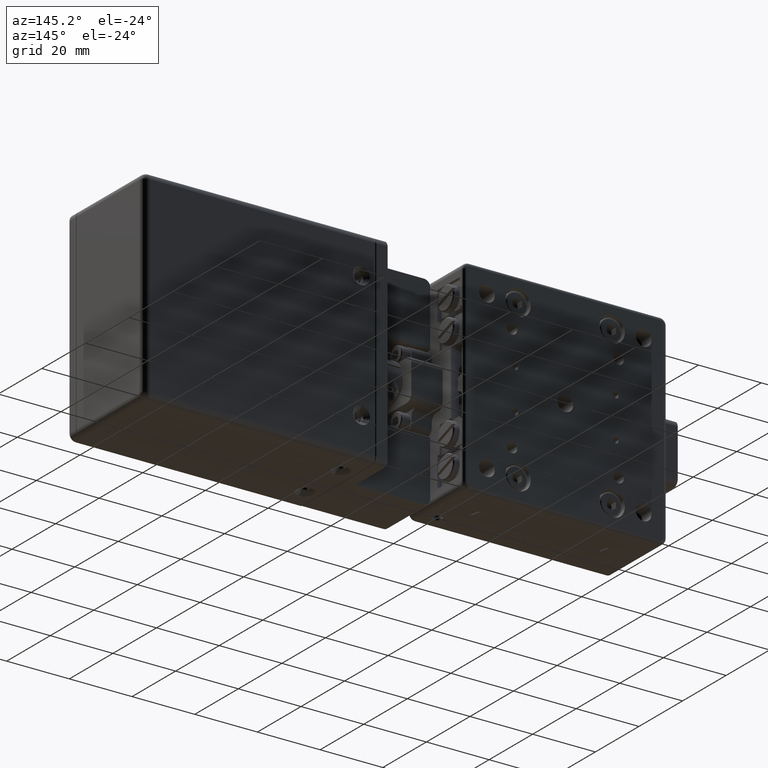
[diagram: clean part render]
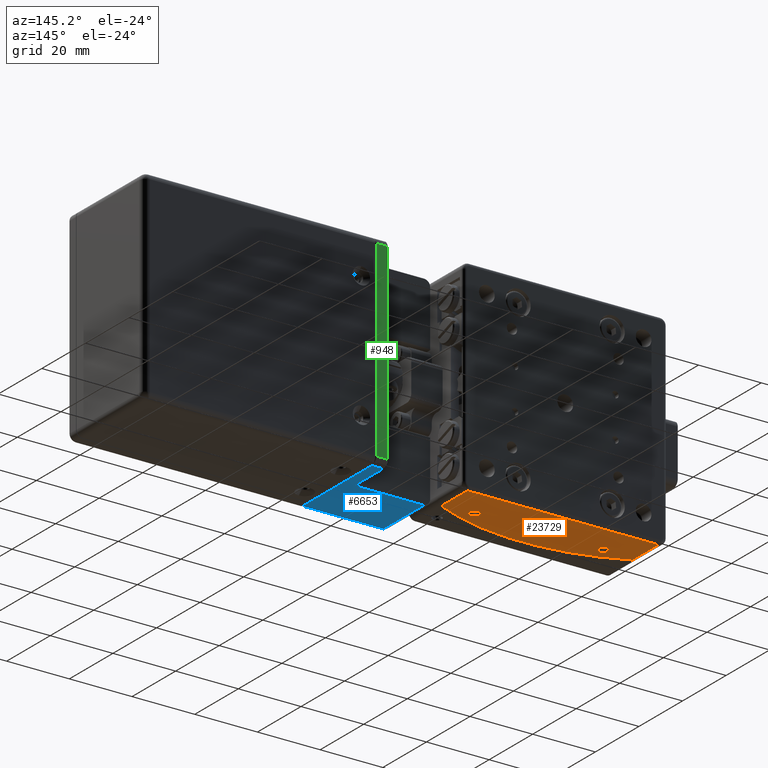
[diagram: same view with three faces highlighted in distinct colors, each labeled with its STEP entity id]
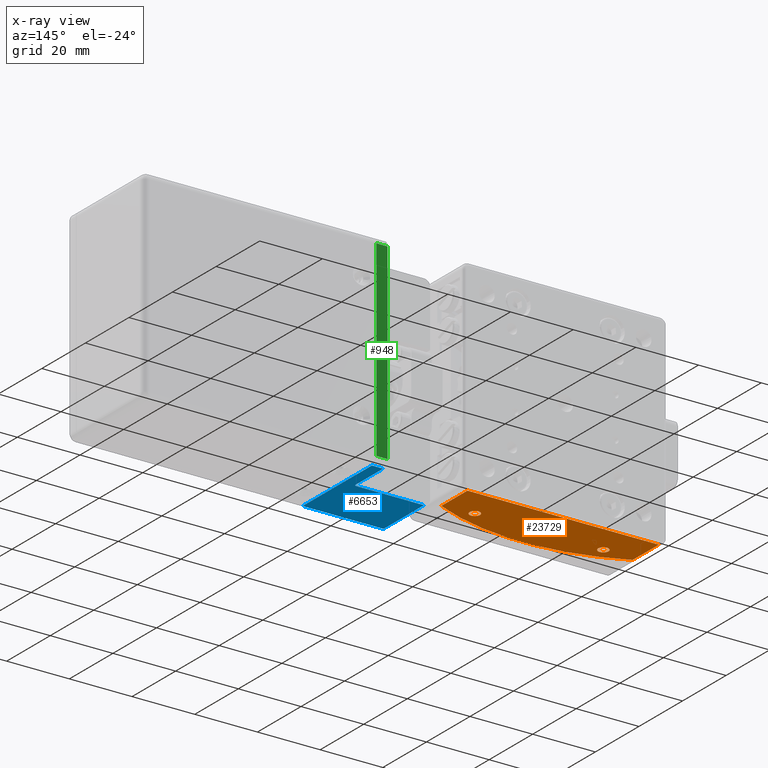
[diagram: x-ray of the same camera — body ghosted, the three highlighted faces saturated]
A machine part, auxiliary view with three faces highlighted in distinct colors.
The next image is the same camera in x-ray (body ghosted, the three faces saturated) — at least one of them is partly hidden behind the body in this view.
Their STEP definitions:

[orange] entity #23729 — the highlighted planar face has unit normal (0, 0, -1).
#836 = DIRECTION ( 'NONE',  ( 0.000000000000000000, 1.000000000000000000, 0.000000000000000000 ) ) ;
#1950 = AXIS2_PLACEMENT_3D ( 'NONE', #45397, #3107, #8836 ) ;
#2269 = VERTEX_POINT ( 'NONE', #23929 ) ;
#2373 = ORIENTED_EDGE ( 'NONE', *, *, #16389, .F. ) ;
#3107 = DIRECTION ( 'NONE',  ( 0.000000000000000000, 0.000000000000000000, -1.000000000000000000 ) ) ;
#4648 = CARTESIAN_POINT ( 'NONE',  ( -130.1520614493393850, 22.74167847702479861, -32.50000000000000000 ) ) ;
#4668 = ORIENTED_EDGE ( 'NONE', *, *, #4992, .T. ) ;
#4992 = EDGE_CURVE ( 'NONE', #32308, #2269, #14597, .T. ) ;
#7381 = CARTESIAN_POINT ( 'NONE',  ( -120.1520614493393850, 33.74167847702480572, -32.50000000000000000 ) ) ;
#7382 = DIRECTION ( 'NONE',  ( 1.000000000000000000, 0.000000000000000000, 0.000000000000000000 ) ) ;
#7650 = CARTESIAN_POINT ( 'NONE',  ( -171.1520614493394987, 22.74167847702479861, -32.50000000000000000 ) ) ;
#7795 = VECTOR ( 'NONE', #7382, 1000.000000000000000 ) ;
#8321 = CARTESIAN_POINT ( 'NONE',  ( -150.6520614493395271, 84.74167847702480572, -32.50000000000000000 ) ) ;
#8802 = EDGE_CURVE ( 'NONE', #33474, #23680, #15130, .T. ) ;
#8836 = DIRECTION ( 'NONE',  ( 0.000000000000000000, -1.000000000000000000, 0.000000000000000000 ) ) ;
#8872 = ORIENTED_EDGE ( 'NONE', *, *, #50369, .T. ) ;
#9171 = CARTESIAN_POINT ( 'NONE',  ( -181.1520614493395271, 34.74167847702480572, -32.50000000000000000 ) ) ;
#9719 = LINE ( 'NONE', #9171, #35764 ) ;
#10690 = DIRECTION ( 'NONE',  ( 0.000000000000000000, -1.000000000000000000, 0.000000000000000000 ) ) ;
#11561 = ORIENTED_EDGE ( 'NONE', *, *, #22363, .T. ) ;
#12634 = DIRECTION ( 'NONE',  ( -1.000000000000000000, 0.000000000000000000, 0.000000000000000000 ) ) ;
#12728 = VERTEX_POINT ( 'NONE', #13175 ) ;
#12767 = DIRECTION ( 'NONE',  ( 0.000000000000000000, 0.000000000000000000, 1.000000000000000000 ) ) ;
#13175 = CARTESIAN_POINT ( 'NONE',  ( -131.8020614493393907, 22.74167847702479861, -32.50000000000000000 ) ) ;
#14221 = EDGE_LOOP ( 'NONE', ( #51653, #17041 ) ) ;
#14317 = VERTEX_POINT ( 'NONE', #22839 ) ;
#14597 = LINE ( 'NONE', #48813, #49739 ) ;
#15130 = CIRCLE ( 'NONE', #46245, 1.650000000000012568 ) ;
#16389 = EDGE_CURVE ( 'NONE', #12728, #30131, #30710, .T. ) ;
#17041 = ORIENTED_EDGE ( 'NONE', *, *, #33896, .F. ) ;
#17242 = CIRCLE ( 'NONE', #46575, 1.650000000000012568 ) ;
#19080 = CARTESIAN_POINT ( 'NONE',  ( -120.1520614493393850, 33.74167847702480572, -32.50000000000000000 ) ) ;
#20078 = FACE_BOUND ( 'NONE', #20779, .T. ) ;
#20702 = DIRECTION ( 'NONE',  ( 0.000000000000000000, 0.000000000000000000, -1.000000000000000000 ) ) ;
#20779 = EDGE_LOOP ( 'NONE', ( #2373, #34045 ) ) ;
#21352 = ORIENTED_EDGE ( 'NONE', *, *, #48782, .F. ) ;
#22363 = EDGE_CURVE ( 'NONE', #30564, #14317, #9719, .T. ) ;
#22839 = CARTESIAN_POINT ( 'NONE',  ( -181.1520614493395271, 33.74167847702480572, -32.50000000000000000 ) ) ;
#23274 = LINE ( 'NONE', #19080, #7795 ) ;
#23680 = VERTEX_POINT ( 'NONE', #55031 ) ;
#23729 = ADVANCED_FACE ( 'NONE', ( #28440, #20078, #46713 ), #25558, .T. ) ;
#23873 = CARTESIAN_POINT ( 'NONE',  ( -181.1520614493395271, 21.73572637724295120, -32.50000000000000000 ) ) ;
#23929 = CARTESIAN_POINT ( 'NONE',  ( -120.1520614493393850, 21.73572637724295120, -32.50000000000000000 ) ) ;
#24626 = CARTESIAN_POINT ( 'NONE',  ( -130.1520614493393850, 22.74167847702479861, -32.50000000000000000 ) ) ;
#25308 = DIRECTION ( 'NONE',  ( -1.000000000000000000, 0.000000000000000000, 0.000000000000000000 ) ) ;
#25529 = DIRECTION ( 'NONE',  ( 0.000000000000000000, 0.000000000000000000, -1.000000000000000000 ) ) ;
#25558 = PLANE ( 'NONE',  #1950 ) ;
#25952 = DIRECTION ( 'NONE',  ( -1.000000000000000000, 0.000000000000000000, 0.000000000000000000 ) ) ;
#27696 = DIRECTION ( 'NONE',  ( -1.000000000000000000, 0.000000000000000000, 0.000000000000000000 ) ) ;
#28440 = FACE_BOUND ( 'NONE', #14221, .T. ) ;
#29684 = CIRCLE ( 'NONE', #50126, 1.650000000000012568 ) ;
#29862 = DIRECTION ( 'NONE',  ( 0.000000000000000000, 0.000000000000000000, -1.000000000000000000 ) ) ;
#30131 = VERTEX_POINT ( 'NONE', #38379 ) ;
#30564 = VERTEX_POINT ( 'NONE', #23873 ) ;
#30710 = CIRCLE ( 'NONE', #39567, 1.650000000000012568 ) ;
#32026 = EDGE_CURVE ( 'NONE', #30131, #12728, #29684, .T. ) ;
#32308 = VERTEX_POINT ( 'NONE', #7381 ) ;
#33474 = VERTEX_POINT ( 'NONE', #42989 ) ;
#33896 = EDGE_CURVE ( 'NONE', #23680, #33474, #17242, .T. ) ;
#34045 = ORIENTED_EDGE ( 'NONE', *, *, #32026, .F. ) ;
#35764 = VECTOR ( 'NONE', #836, 1000.000000000000000 ) ;
#37138 = DIRECTION ( 'NONE',  ( 0.000000000000000000, 0.000000000000000000, -1.000000000000000000 ) ) ;
#37878 = AXIS2_PLACEMENT_3D ( 'NONE', #8321, #12767, #25308 ) ;
#38379 = CARTESIAN_POINT ( 'NONE',  ( -128.5020614493394078, 22.74167847702479861, -32.50000000000000000 ) ) ;
#39567 = AXIS2_PLACEMENT_3D ( 'NONE', #24626, #20702, #12634 ) ;
#40533 = CIRCLE ( 'NONE', #37878, 70.00000000000000000 ) ;
#42771 = DIRECTION ( 'NONE',  ( -1.000000000000000000, 0.000000000000000000, 0.000000000000000000 ) ) ;
#42989 = CARTESIAN_POINT ( 'NONE',  ( -172.8020614493395044, 22.74167847702479861, -32.50000000000000000 ) ) ;
#45397 = CARTESIAN_POINT ( 'NONE',  ( -150.6520614493395271, 84.74167847702480572, -32.50000000000000000 ) ) ;
#46245 = AXIS2_PLACEMENT_3D ( 'NONE', #7650, #37138, #27696 ) ;
#46575 = AXIS2_PLACEMENT_3D ( 'NONE', #50724, #29862, #25952 ) ;
#46713 = FACE_OUTER_BOUND ( 'NONE', #54353, .T. ) ;
#48782 = EDGE_CURVE ( 'NONE', #30564, #2269, #40533, .T. ) ;
#48813 = CARTESIAN_POINT ( 'NONE',  ( -120.1520614493393850, 22.74369463883855147, -32.50000000000000000 ) ) ;
#49739 = VECTOR ( 'NONE', #10690, 1000.000000000000000 ) ;
#50126 = AXIS2_PLACEMENT_3D ( 'NONE', #4648, #25529, #42771 ) ;
#50369 = EDGE_CURVE ( 'NONE', #14317, #32308, #23274, .T. ) ;
#50724 = CARTESIAN_POINT ( 'NONE',  ( -171.1520614493394987, 22.74167847702479861, -32.50000000000000000 ) ) ;
#51653 = ORIENTED_EDGE ( 'NONE', *, *, #8802, .F. ) ;
#54353 = EDGE_LOOP ( 'NONE', ( #11561, #8872, #4668, #21352 ) ) ;
#55031 = CARTESIAN_POINT ( 'NONE',  ( -169.5020614493394930, 22.74167847702479861, -32.50000000000000000 ) ) ;

[blue] entity #6653 — the highlighted planar face has unit normal (-0, 0, 1).
#68 = ORIENTED_EDGE ( 'NONE', *, *, #15341, .T. ) ;
#1319 = VERTEX_POINT ( 'NONE', #36288 ) ;
#1826 = LINE ( 'NONE', #51656, #42659 ) ;
#1989 = VERTEX_POINT ( 'NONE', #24552 ) ;
#2930 = LINE ( 'NONE', #19893, #19070 ) ;
#3270 = LINE ( 'NONE', #7990, #5788 ) ;
#4330 = VERTEX_POINT ( 'NONE', #45111 ) ;
#4664 = VERTEX_POINT ( 'NONE', #36624 ) ;
#5331 = VERTEX_POINT ( 'NONE', #47930 ) ;
#5788 = VECTOR ( 'NONE', #24421, 1000.000000000000000 ) ;
#6357 = ORIENTED_EDGE ( 'NONE', *, *, #12429, .F. ) ;
#6653 = ADVANCED_FACE ( 'NONE', ( #34718 ), #42251, .F. ) ;
#6794 = VERTEX_POINT ( 'NONE', #21659 ) ;
#7990 = CARTESIAN_POINT ( 'NONE',  ( -116.1520614493393992, 0.9416784770247960124, -32.50000000000000000 ) ) ;
#8179 = CARTESIAN_POINT ( 'NONE',  ( -116.1520614493393992, 0.7416784770247970560, -32.50000000000000000 ) ) ;
#8218 = LINE ( 'NONE', #12666, #47411 ) ;
#10432 = DIRECTION ( 'NONE',  ( -0.7071067811865474617, -0.7071067811865474617, -8.659560562354921765E-17 ) ) ;
#12348 = LINE ( 'NONE', #8179, #13728 ) ;
#12429 = EDGE_CURVE ( 'NONE', #4330, #4664, #24072, .T. ) ;
#12457 = DIRECTION ( 'NONE',  ( 1.000000000000000000, 0.000000000000000000, 1.224646799147351975E-16 ) ) ;
#12666 = CARTESIAN_POINT ( 'NONE',  ( -93.95206144933938219, 0.7416784770247970560, -32.50000000000000000 ) ) ;
#13463 = EDGE_CURVE ( 'NONE', #6794, #1989, #1826, .T. ) ;
#13728 = VECTOR ( 'NONE', #15981, 1000.000000000000000 ) ;
#15046 = ORIENTED_EDGE ( 'NONE', *, *, #46074, .T. ) ;
#15341 = EDGE_CURVE ( 'NONE', #33279, #1319, #12348, .T. ) ;
#15981 = DIRECTION ( 'NONE',  ( 0.000000000000000000, 1.000000000000000000, 0.000000000000000000 ) ) ;
#16100 = EDGE_CURVE ( 'NONE', #1989, #33279, #3270, .T. ) ;
#19070 = VECTOR ( 'NONE', #36316, 1000.000000000000000 ) ;
#19322 = CARTESIAN_POINT ( 'NONE',  ( -94.35206144933930261, 19.54167847702480287, -32.50000000000000000 ) ) ;
#19893 = CARTESIAN_POINT ( 'NONE',  ( -118.1520614493393850, 32.74167847702480572, -32.50000000000000000 ) ) ;
#21087 = DIRECTION ( 'NONE',  ( -1.224646799147351975E-16, 0.000000000000000000, 1.000000000000000000 ) ) ;
#21659 = CARTESIAN_POINT ( 'NONE',  ( -90.35206144933930261, 32.74167847702480572, -32.50000000000000000 ) ) ;
#21693 = ORIENTED_EDGE ( 'NONE', *, *, #13463, .T. ) ;
#21757 = EDGE_CURVE ( 'NONE', #4330, #5331, #8218, .T. ) ;
#22853 = LINE ( 'NONE', #43183, #41031 ) ;
#23364 = ORIENTED_EDGE ( 'NONE', *, *, #16100, .T. ) ;
#24072 = LINE ( 'NONE', #19322, #50553 ) ;
#24421 = DIRECTION ( 'NONE',  ( -1.000000000000000000, 0.000000000000000000, -1.224646799147351975E-16 ) ) ;
#24552 = CARTESIAN_POINT ( 'NONE',  ( -90.35206144933930261, 0.9416784770247960124, -32.50000000000000000 ) ) ;
#25816 = AXIS2_PLACEMENT_3D ( 'NONE', #46418, #21087, #12457 ) ;
#27087 = EDGE_CURVE ( 'NONE', #1319, #4664, #22853, .T. ) ;
#27580 = EDGE_LOOP ( 'NONE', ( #21693, #23364, #68, #37378, #6357, #50736, #15046 ) ) ;
#33279 = VERTEX_POINT ( 'NONE', #44688 ) ;
#34718 = FACE_OUTER_BOUND ( 'NONE', #27580, .T. ) ;
#35509 = DIRECTION ( 'NONE',  ( 0.000000000000000000, -1.000000000000000000, 0.000000000000000000 ) ) ;
#36288 = CARTESIAN_POINT ( 'NONE',  ( -116.1520614493393992, 19.54167847702480287, -32.50000000000000000 ) ) ;
#36316 = DIRECTION ( 'NONE',  ( 1.000000000000000000, 0.000000000000000000, 1.224646799147351975E-16 ) ) ;
#36624 = CARTESIAN_POINT ( 'NONE',  ( -94.35206144933940209, 19.54167847702480287, -32.50000000000000000 ) ) ;
#37378 = ORIENTED_EDGE ( 'NONE', *, *, #27087, .T. ) ;
#41031 = VECTOR ( 'NONE', #47344, 1000.000000000000000 ) ;
#42251 = PLANE ( 'NONE',  #25816 ) ;
#42659 = VECTOR ( 'NONE', #35509, 1000.000000000000000 ) ;
#43183 = CARTESIAN_POINT ( 'NONE',  ( -94.15206144933939925, 19.54167847702480287, -32.50000000000000000 ) ) ;
#44688 = CARTESIAN_POINT ( 'NONE',  ( -116.1520614493393992, 0.9416784770247960124, -32.50000000000000000 ) ) ;
#45111 = CARTESIAN_POINT ( 'NONE',  ( -93.95206144933938219, 19.94167847702480145, -32.50000000000000000 ) ) ;
#46074 = EDGE_CURVE ( 'NONE', #5331, #6794, #2930, .T. ) ;
#46418 = CARTESIAN_POINT ( 'NONE',  ( -118.1520614493393850, 0.7416784770247970560, -32.50000000000000000 ) ) ;
#47344 = DIRECTION ( 'NONE',  ( 1.000000000000000000, 0.000000000000000000, 1.224646799147351975E-16 ) ) ;
#47411 = VECTOR ( 'NONE', #54137, 1000.000000000000000 ) ;
#47930 = CARTESIAN_POINT ( 'NONE',  ( -93.95206144933938219, 32.74167847702480572, -32.50000000000000000 ) ) ;
#50553 = VECTOR ( 'NONE', #10432, 1000.000000000000114 ) ;
#50736 = ORIENTED_EDGE ( 'NONE', *, *, #21757, .T. ) ;
#51656 = CARTESIAN_POINT ( 'NONE',  ( -90.35206144933930261, 0.7416784770247970560, -32.50000000000000000 ) ) ;
#54137 = DIRECTION ( 'NONE',  ( 0.000000000000000000, 1.000000000000000000, 0.000000000000000000 ) ) ;

[green] entity #948 — the highlighted planar face has unit normal (0, -1, 0).
#178 = VERTEX_POINT ( 'NONE', #20969 ) ;
#948 = ADVANCED_FACE ( 'NONE', ( #28305 ), #39531, .F. ) ;
#1306 = VERTEX_POINT ( 'NONE', #2350 ) ;
#1367 = VECTOR ( 'NONE', #18906, 1000.000000000000000 ) ;
#2350 = CARTESIAN_POINT ( 'NONE',  ( -93.95206144933938219, 34.74167847702480572, -30.50000000000000000 ) ) ;
#5897 = ORIENTED_EDGE ( 'NONE', *, *, #28965, .T. ) ;
#7139 = DIRECTION ( 'NONE',  ( 0.000000000000000000, 0.000000000000000000, -1.000000000000000000 ) ) ;
#9242 = VERTEX_POINT ( 'NONE', #32907 ) ;
#10289 = ORIENTED_EDGE ( 'NONE', *, *, #35315, .T. ) ;
#14955 = EDGE_CURVE ( 'NONE', #9242, #1306, #46095, .T. ) ;
#18906 = DIRECTION ( 'NONE',  ( 1.000000000000000000, 0.000000000000000000, 0.000000000000000000 ) ) ;
#19195 = DIRECTION ( 'NONE',  ( 0.000000000000000000, 0.000000000000000000, 1.000000000000000000 ) ) ;
#20969 = CARTESIAN_POINT ( 'NONE',  ( -90.35206144933930261, 34.74167847702480572, 30.50000000000000000 ) ) ;
#26896 = AXIS2_PLACEMENT_3D ( 'NONE', #28848, #40550, #7139 ) ;
#27083 = VECTOR ( 'NONE', #45504, 1000.000000000000000 ) ;
#27790 = VERTEX_POINT ( 'NONE', #31453 ) ;
#28305 = FACE_OUTER_BOUND ( 'NONE', #35650, .T. ) ;
#28433 = VECTOR ( 'NONE', #50270, 1000.000000000000000 ) ;
#28848 = CARTESIAN_POINT ( 'NONE',  ( -118.1520614493393850, 34.74167847702480572, -32.50000000000000000 ) ) ;
#28965 = EDGE_CURVE ( 'NONE', #1306, #27790, #44252, .T. ) ;
#31453 = CARTESIAN_POINT ( 'NONE',  ( -93.95206144933938219, 34.74167847702480572, 30.50000000000000000 ) ) ;
#32907 = CARTESIAN_POINT ( 'NONE',  ( -90.35206144933930261, 34.74167847702480572, -30.50000000000000000 ) ) ;
#33029 = CARTESIAN_POINT ( 'NONE',  ( -118.1520614493393850, 34.74167847702480572, -30.50000000000000000 ) ) ;
#35315 = EDGE_CURVE ( 'NONE', #27790, #178, #52313, .T. ) ;
#35625 = CARTESIAN_POINT ( 'NONE',  ( -118.1520614493393850, 34.74167847702480572, 30.50000000000000000 ) ) ;
#35650 = EDGE_LOOP ( 'NONE', ( #10289, #44340, #35797, #5897 ) ) ;
#35797 = ORIENTED_EDGE ( 'NONE', *, *, #14955, .T. ) ;
#37868 = VECTOR ( 'NONE', #19195, 1000.000000000000000 ) ;
#39531 = PLANE ( 'NONE',  #26896 ) ;
#40550 = DIRECTION ( 'NONE',  ( 0.000000000000000000, -1.000000000000000000, 0.000000000000000000 ) ) ;
#41342 = CARTESIAN_POINT ( 'NONE',  ( -90.35206144933930261, 34.74167847702480572, -30.50000000000000000 ) ) ;
#44252 = LINE ( 'NONE', #52869, #37868 ) ;
#44340 = ORIENTED_EDGE ( 'NONE', *, *, #46112, .T. ) ;
#45504 = DIRECTION ( 'NONE',  ( 0.000000000000000000, 0.000000000000000000, -1.000000000000000000 ) ) ;
#46095 = LINE ( 'NONE', #33029, #28433 ) ;
#46112 = EDGE_CURVE ( 'NONE', #178, #9242, #53294, .T. ) ;
#50270 = DIRECTION ( 'NONE',  ( -1.000000000000000000, 0.000000000000000000, -1.224646799147351975E-16 ) ) ;
#52313 = LINE ( 'NONE', #35625, #1367 ) ;
#52869 = CARTESIAN_POINT ( 'NONE',  ( -93.95206144933938219, 34.74167847702480572, -32.50000000000000000 ) ) ;
#53294 = LINE ( 'NONE', #41342, #27083 ) ;